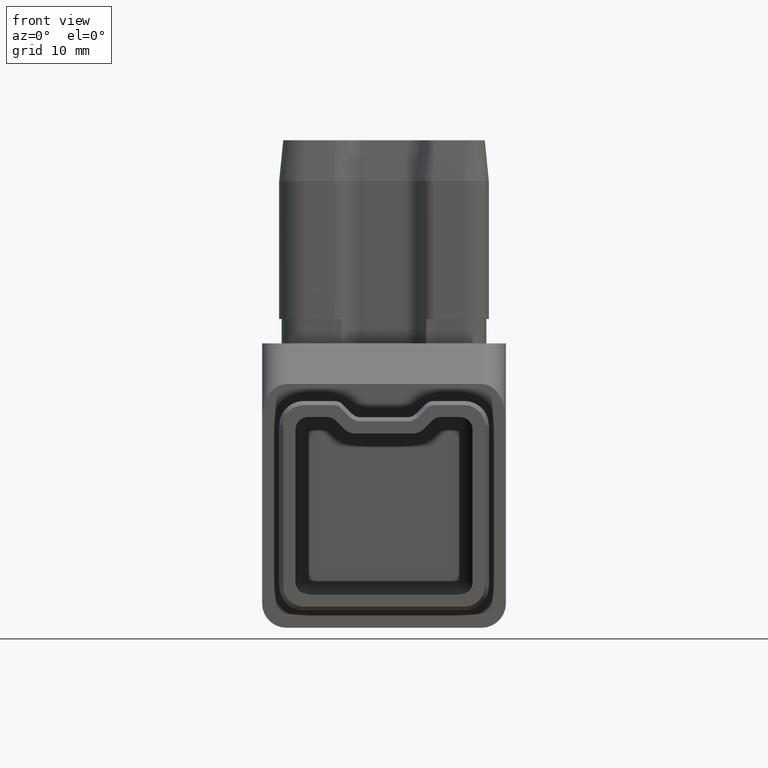
[diagram: clean part render]
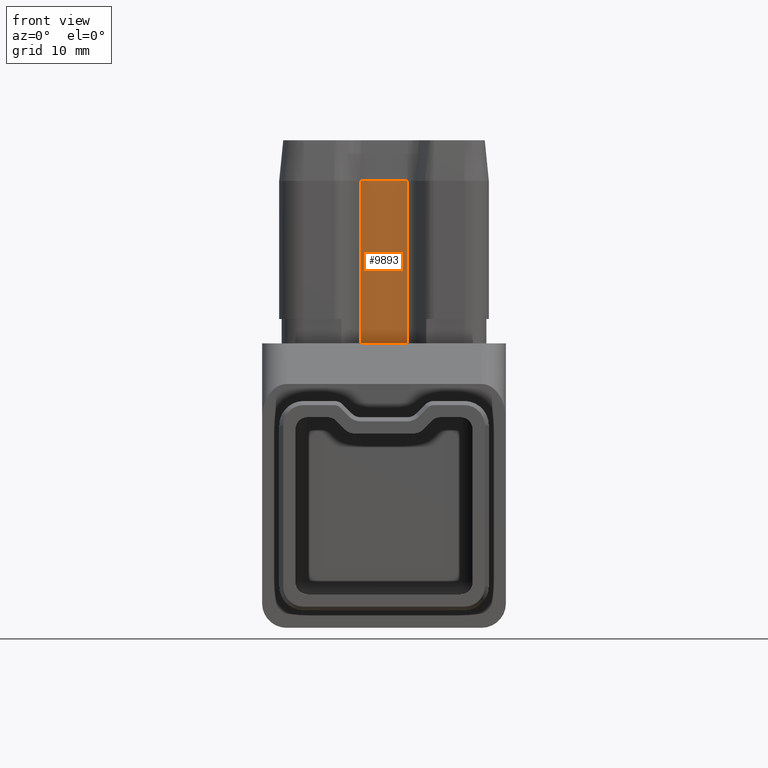
[diagram: same view with one face highlighted and labeled with its STEP entity id]
A machine part, front view. The second image highlights one B-rep face of the part: STEP entity #9893.
In plain terms, the highlighted planar face has unit normal (0, 1, -0).
Its self-contained STEP definition (entity closure, byte-faithful):
#1394 = ORIENTED_EDGE ( 'NONE', *, *, #6164, .T. ) ;
#2717 = CARTESIAN_POINT ( 'NONE',  ( 2.878679656440357200, -8.399999999999995000, 37.50000000000000700 ) ) ;
#3124 = LINE ( 'NONE', #24078, #9503 ) ;
#3502 = AXIS2_PLACEMENT_3D ( 'NONE', #7548, #11868, #7733 ) ;
#6164 = EDGE_CURVE ( 'NONE', #27251, #12503, #20190, .T. ) ;
#6554 = VECTOR ( 'NONE', #14285, 1000.000000000000000 ) ;
#6597 = VERTEX_POINT ( 'NONE', #2717 ) ;
#7261 = ORIENTED_EDGE ( 'NONE', *, *, #15287, .T. ) ;
#7548 = CARTESIAN_POINT ( 'NONE',  ( 3.500000000000007500, -8.400000000000002100, 42.50000000000000000 ) ) ;
#7654 = CARTESIAN_POINT ( 'NONE',  ( 2.878679656440362500, -8.400000000000002100, 17.50000000000000000 ) ) ;
#7733 = DIRECTION ( 'NONE',  ( 0.0000000000000000000, 0.0000000000000000000, 1.000000000000000000 ) ) ;
#9503 = VECTOR ( 'NONE', #17795, 1000.000000000000000 ) ;
#9622 = DIRECTION ( 'NONE',  ( 1.000000000000000000, -0.0000000000000000000, -0.0000000000000000000 ) ) ;
#9730 = CARTESIAN_POINT ( 'NONE',  ( -2.878679656440363400, -8.399999999999995000, 37.50000000000000700 ) ) ;
#9893 = ADVANCED_FACE ( 'NONE', ( #14753 ), #24488, .F. ) ;
#10618 = ORIENTED_EDGE ( 'NONE', *, *, #23771, .T. ) ;
#11868 = DIRECTION ( 'NONE',  ( 0.0000000000000000000, 1.000000000000000000, -0.0000000000000000000 ) ) ;
#12503 = VERTEX_POINT ( 'NONE', #7654 ) ;
#13618 = LINE ( 'NONE', #20618, #6554 ) ;
#13760 = CARTESIAN_POINT ( 'NONE',  ( -2.878679656440361600, -8.400000000000002100, 17.50000000000000000 ) ) ;
#14037 = VECTOR ( 'NONE', #20186, 1000.000000000000000 ) ;
#14285 = DIRECTION ( 'NONE',  ( -0.0000000000000000000, -0.0000000000000000000, 1.000000000000000000 ) ) ;
#14753 = FACE_OUTER_BOUND ( 'NONE', #17141, .T. ) ;
#15287 = EDGE_CURVE ( 'NONE', #6597, #18936, #3124, .T. ) ;
#16024 = CARTESIAN_POINT ( 'NONE',  ( -2.878679656440359800, -8.400000000000002100, 17.50000000000000000 ) ) ;
#16186 = VECTOR ( 'NONE', #9622, 1000.000000000000000 ) ;
#17141 = EDGE_LOOP ( 'NONE', ( #10618, #7261, #22180, #1394 ) ) ;
#17795 = DIRECTION ( 'NONE',  ( -1.000000000000000000, 0.0000000000000000000, 0.0000000000000000000 ) ) ;
#18936 = VERTEX_POINT ( 'NONE', #9730 ) ;
#20186 = DIRECTION ( 'NONE',  ( 0.0000000000000000000, 0.0000000000000000000, -1.000000000000000000 ) ) ;
#20190 = LINE ( 'NONE', #22415, #16186 ) ;
#20618 = CARTESIAN_POINT ( 'NONE',  ( 2.878679656440362500, -8.400000000000002100, 42.50000000000000000 ) ) ;
#22022 = EDGE_CURVE ( 'NONE', #18936, #27251, #24652, .T. ) ;
#22180 = ORIENTED_EDGE ( 'NONE', *, *, #22022, .T. ) ;
#22415 = CARTESIAN_POINT ( 'NONE',  ( 3.500000000000007500, -8.400000000000002100, 17.50000000000000000 ) ) ;
#23771 = EDGE_CURVE ( 'NONE', #12503, #6597, #13618, .T. ) ;
#24078 = CARTESIAN_POINT ( 'NONE',  ( 2.878679656440357200, -8.399999999999995000, 37.50000000000000700 ) ) ;
#24488 = PLANE ( 'NONE',  #3502 ) ;
#24652 = LINE ( 'NONE', #13760, #14037 ) ;
#27251 = VERTEX_POINT ( 'NONE', #16024 ) ;